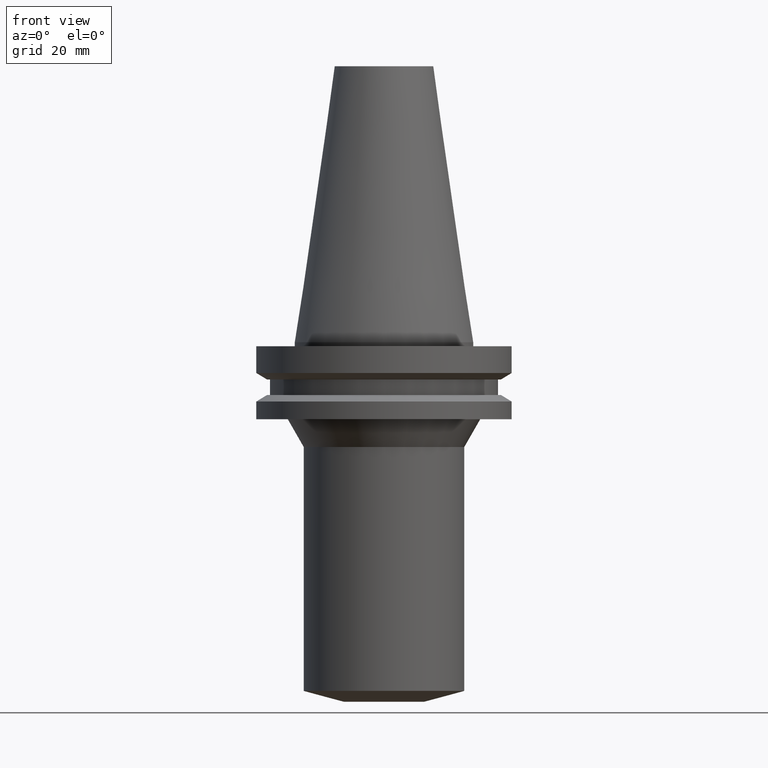
[diagram: clean part render]
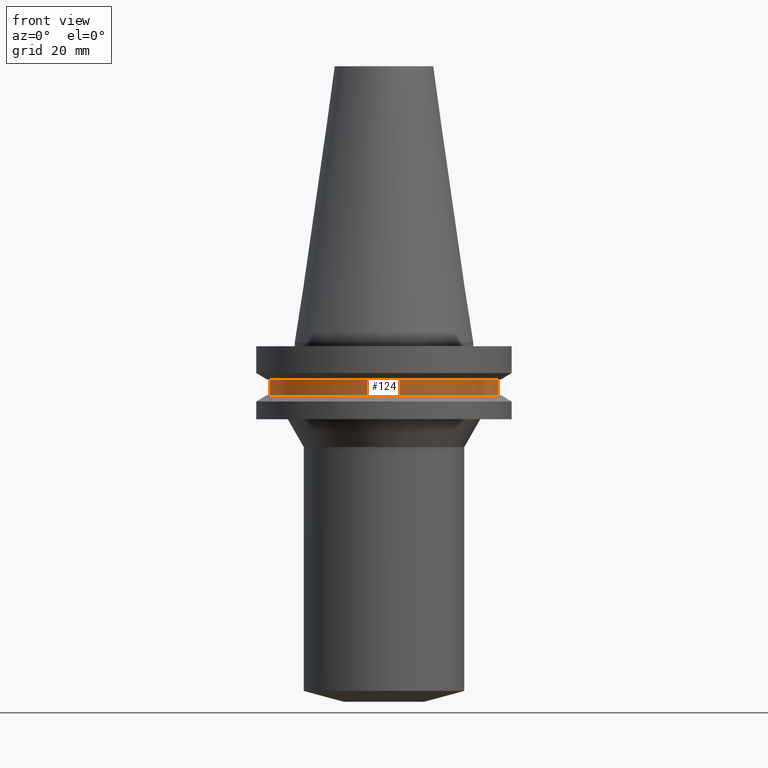
[diagram: same view with one face highlighted and labeled with its STEP entity id]
A machine part, front view. The second image highlights one B-rep face of the part: STEP entity #124.
In plain terms, the highlighted cylindrical surface (bore or boss wall) has radius 28.18 mm, axis along (0, 0, -1).
Its self-contained STEP definition (entity closure, byte-faithful):
#59=EDGE_CURVE('Unnamed[1]',#157,#157,#158,.T.);
#119=EDGE_CURVE('Unnamed[1]',#251,#251,#252,.T.);
#124=ADVANCED_FACE('Unnamed[1]',(#258,#259),#260,.T.);
#157=VERTEX_POINT('',#291);
#158=CIRCLE('',#292,28.18);
#251=VERTEX_POINT('',#408);
#252=CIRCLE('',#409,28.18);
#258=FACE_BOUND('',#417,.T.);
#259=FACE_BOUND('',#418,.T.);
#260=CYLINDRICAL_SURFACE('',#419,28.18);
#291=CARTESIAN_POINT('',(5.63337527607782E-016,28.18,-9.2));
#292=AXIS2_PLACEMENT_3D('',#447,#448,#449);
#408=CARTESIAN_POINT('',(7.98469713044073E-016,28.18,-13.04));
#409=AXIS2_PLACEMENT_3D('',#550,#551,#552);
#417=EDGE_LOOP('',(#557));
#418=EDGE_LOOP('',(#558));
#419=AXIS2_PLACEMENT_3D('',#559,#560,#561);
#447=CARTESIAN_POINT('',(5.63337527607783E-016,1.12667505521557E-015,-9.2));
#448=DIRECTION('',(6.12323399573677E-017,1.22464679914735E-016,-1.0));
#449=DIRECTION('',(-1.23259516440783E-032,1.0,1.22464679914735E-016));
#550=CARTESIAN_POINT('',(7.98469713044074E-016,1.59693942608815E-015,-13.04));
#551=DIRECTION('',(6.12323399573677E-017,1.22464679914735E-016,-1.0));
#552=DIRECTION('',(-1.23259516440783E-032,1.0,1.22464679914735E-016));
#557=ORIENTED_EDGE('',*,*,#119,.F.);
#558=ORIENTED_EDGE('',*,*,#59,.T.);
#559=CARTESIAN_POINT('',(6.80903620325929E-016,1.36180724065186E-015,-11.12));
#560=DIRECTION('',(6.12323399573677E-017,1.22464679914735E-016,-1.0));
#561=DIRECTION('',(-1.23259516440783E-032,1.0,1.22464679914735E-016));